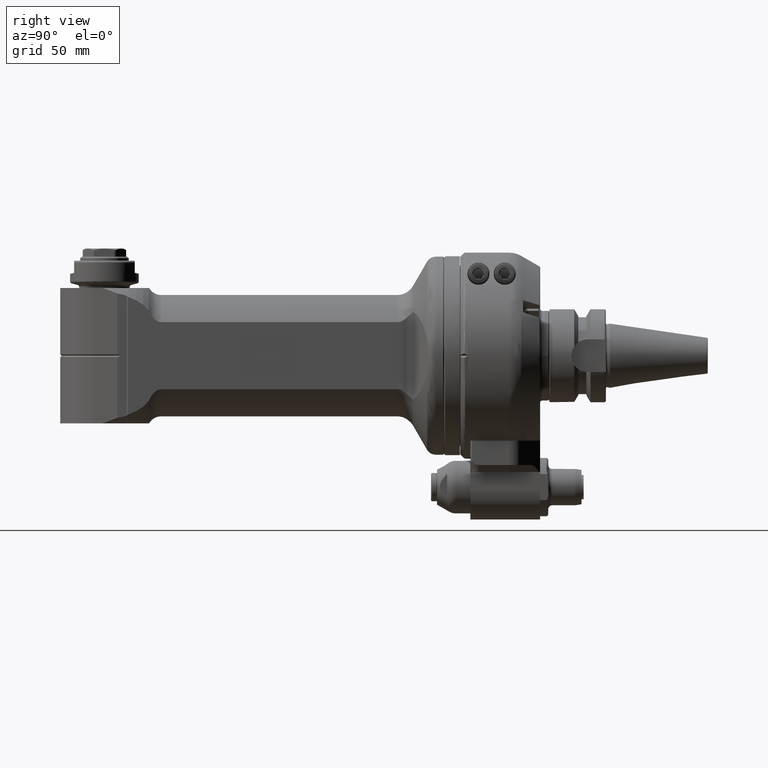
[diagram: clean part render]
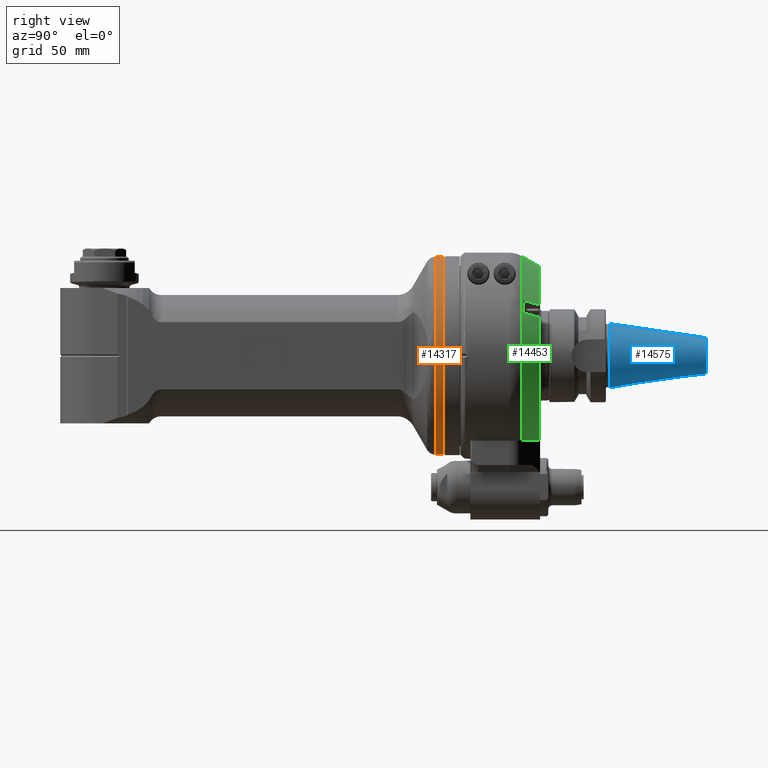
[diagram: same view with three faces highlighted in distinct colors, each labeled with its STEP entity id]
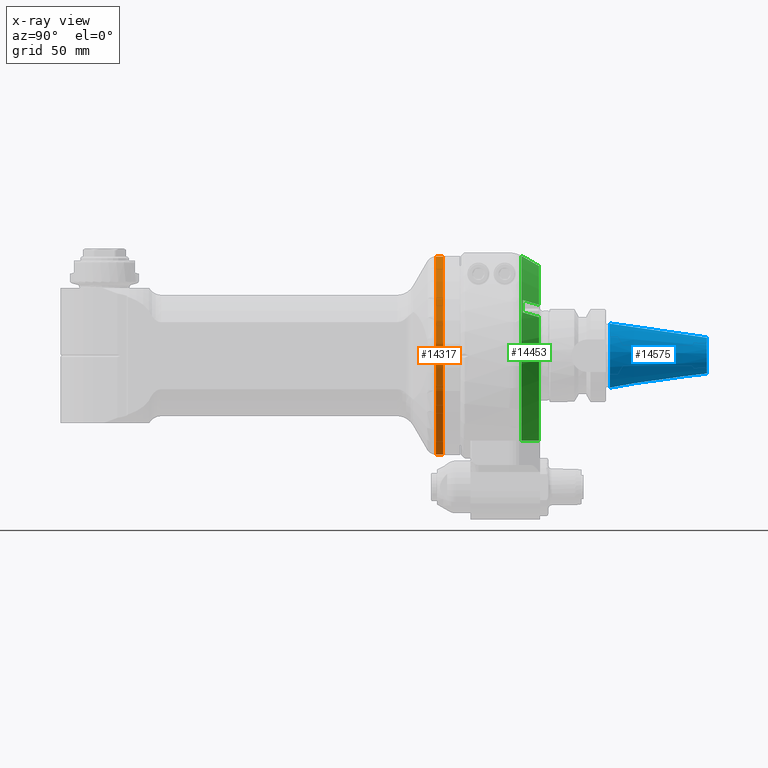
[diagram: x-ray of the same camera — body ghosted, the three highlighted faces saturated]
A machine part, right view with three faces highlighted in distinct colors.
The next image is the same camera in x-ray (body ghosted, the three faces saturated) — at least one of them is partly hidden behind the body in this view.
Their STEP definitions:

[orange] entity #14317 — the highlighted cylindrical surface (bore or boss wall) has radius 49 mm, axis along (-0, 1, 0).
#650=CYLINDRICAL_SURFACE('',#15384,49.);
#1166=CIRCLE('',#15382,49.);
#1168=CIRCLE('',#15385,49.);
#1169=CIRCLE('',#15386,49.);
#2021=FACE_OUTER_BOUND('',#2884,.T.);
#2884=EDGE_LOOP('',(#10178,#10179,#10180,#10181,#10182));
#3849=LINE('',#22196,#4905);
#4905=VECTOR('',#17442,49.);
#6076=VERTEX_POINT('',#22178);
#6077=VERTEX_POINT('',#22192);
#6078=VERTEX_POINT('',#22193);
#7706=EDGE_CURVE('',#6076,#6076,#1166,.T.);
#7709=EDGE_CURVE('',#6077,#6078,#1168,.T.);
#7710=EDGE_CURVE('',#6078,#6077,#1169,.T.);
#7711=EDGE_CURVE('',#6078,#6076,#3849,.T.);
#10178=ORIENTED_EDGE('',*,*,#7709,.F.);
#10179=ORIENTED_EDGE('',*,*,#7710,.F.);
#10180=ORIENTED_EDGE('',*,*,#7711,.T.);
#10181=ORIENTED_EDGE('',*,*,#7706,.F.);
#10182=ORIENTED_EDGE('',*,*,#7711,.F.);
#14317=ADVANCED_FACE('',(#2021),#650,.T.);
#15382=AXIS2_PLACEMENT_3D('',#22179,#17432,#17433);
#15384=AXIS2_PLACEMENT_3D('',#22191,#17436,#17437);
#15385=AXIS2_PLACEMENT_3D('',#22194,#17438,#17439);
#15386=AXIS2_PLACEMENT_3D('',#22195,#17440,#17441);
#17432=DIRECTION('center_axis',(1.,0.,0.));
#17433=DIRECTION('ref_axis',(0.,-1.,0.));
#17436=DIRECTION('center_axis',(-1.,0.,0.));
#17437=DIRECTION('ref_axis',(0.,1.,0.));
#17438=DIRECTION('center_axis',(-1.,0.,0.));
#17439=DIRECTION('ref_axis',(0.,1.,0.));
#17440=DIRECTION('center_axis',(-1.,0.,0.));
#17441=DIRECTION('ref_axis',(0.,1.,0.));
#17442=DIRECTION('',(1.,0.,0.));
#22178=CARTESIAN_POINT('',(16.11324869871,-49.,6.00076931582203E-15));
#22179=CARTESIAN_POINT('Origin',(16.11324869871,0.,0.));
#22191=CARTESIAN_POINT('Origin',(58.7038755,0.,0.));
#22192=CARTESIAN_POINT('',(12.5,49.,0.));
#22193=CARTESIAN_POINT('',(12.5,-49.,6.00076931582203E-15));
#22194=CARTESIAN_POINT('Origin',(12.5,0.,0.));
#22195=CARTESIAN_POINT('Origin',(12.5,0.,0.));
#22196=CARTESIAN_POINT('',(58.7038755,-49.,6.00076931582203E-15));

[blue] entity #14575 — the highlighted conical surface has half-angle 8.297 deg.
#521=CONICAL_SURFACE('',#15883,12.37703260579,0.144812411498922);
#1404=CIRCLE('',#15881,8.879065211573);
#1406=CIRCLE('',#15884,15.875);
#1407=CIRCLE('',#15885,15.875);
#2279=FACE_OUTER_BOUND('',#3208,.T.);
#3208=EDGE_LOOP('',(#11776,#11777,#11778,#11779,#11780));
#4336=LINE('',#24298,#5392);
#5392=VECTOR('',#18925,12.37703260579);
#6687=VERTEX_POINT('',#24291);
#6688=VERTEX_POINT('',#24295);
#6689=VERTEX_POINT('',#24296);
#8498=EDGE_CURVE('',#6687,#6687,#1404,.T.);
#8500=EDGE_CURVE('',#6688,#6689,#1406,.T.);
#8501=EDGE_CURVE('',#6688,#6687,#4336,.T.);
#8502=EDGE_CURVE('',#6689,#6688,#1407,.T.);
#11776=ORIENTED_EDGE('',*,*,#8500,.F.);
#11777=ORIENTED_EDGE('',*,*,#8501,.T.);
#11778=ORIENTED_EDGE('',*,*,#8498,.F.);
#11779=ORIENTED_EDGE('',*,*,#8501,.F.);
#11780=ORIENTED_EDGE('',*,*,#8502,.F.);
#14575=ADVANCED_FACE('',(#2279),#521,.T.);
#15881=AXIS2_PLACEMENT_3D('',#24292,#18917,#18918);
#15883=AXIS2_PLACEMENT_3D('',#24294,#18921,#18922);
#15884=AXIS2_PLACEMENT_3D('',#24297,#18923,#18924);
#15885=AXIS2_PLACEMENT_3D('',#24299,#18926,#18927);
#18917=DIRECTION('center_axis',(0.,1.,0.));
#18918=DIRECTION('ref_axis',(0.,0.,-1.));
#18921=DIRECTION('center_axis',(0.,-1.,0.));
#18922=DIRECTION('ref_axis',(0.,0.,-1.));
#18923=DIRECTION('center_axis',(0.,-1.,0.));
#18924=DIRECTION('ref_axis',(0.,0.,1.));
#18925=DIRECTION('',(1.76724869581176E-17,0.98953299358046,-0.144306807239621));
#18926=DIRECTION('center_axis',(0.,-1.,0.));
#18927=DIRECTION('ref_axis',(0.,0.,1.));
#24291=CARTESIAN_POINT('',(-1.08737187907735E-15,121.97215340362,8.879065211573));
#24292=CARTESIAN_POINT('Origin',(0.,121.97215340362,0.));
#24294=CARTESIAN_POINT('Origin',(0.,97.98607670181,0.));
#24295=CARTESIAN_POINT('',(0.,74.,15.875));
#24296=CARTESIAN_POINT('',(-1.94412679364602E-15,74.0000000000009,-15.8749999999967));
#24297=CARTESIAN_POINT('Origin',(0.,74.,0.));
#24298=CARTESIAN_POINT('',(-1.51574933636231E-15,97.98607670181,12.37703260579));
#24299=CARTESIAN_POINT('Origin',(0.,74.,0.));

[green] entity #14453 — the highlighted conical surface has half-angle 30 deg.
#127=B_SPLINE_CURVE_WITH_KNOTS('',3,(#23332,#23333,#23334,#23335,#23336,
#23337,#23338,#23339,#23340,#23341),.UNSPECIFIED.,.F.,.F.,(4,3,3,4),(1.4337342611041E-5,
0.3333333333333,0.6666666666667,1.),.UNSPECIFIED.);
#130=B_SPLINE_CURVE_WITH_KNOTS('',3,(#23387,#23388,#23389,#23390,#23391,
#23392,#23393,#23394,#23395,#23396),.UNSPECIFIED.,.F.,.F.,(4,3,3,4),(0.,
0.3333333333333,0.6666666666667,0.999986602366628),.UNSPECIFIED.);
#134=B_SPLINE_CURVE_WITH_KNOTS('',3,(#23446,#23447,#23448,#23449,#23450,
#23451,#23452,#23453,#23454,#23455),.UNSPECIFIED.,.F.,.F.,(4,3,3,4),(2.38328188097675E-6,
0.3333333333333,0.6666666666667,1.),.UNSPECIFIED.);
#327=(
BOUNDED_CURVE()
B_SPLINE_CURVE(2,(#23214,#23215,#23216),.UNSPECIFIED.,.F.,.F.)
B_SPLINE_CURVE_WITH_KNOTS((3,3),(-4.80707705791519,-2.95268713046296),
 .UNSPECIFIED.)
CURVE()
GEOMETRIC_REPRESENTATION_ITEM()
RATIONAL_B_SPLINE_CURVE((1.01149371983583,1.03091361245284,1.03364016221379))
REPRESENTATION_ITEM('')
);
#490=CONICAL_SURFACE('',#15636,46.84048999,0.523598775598299);
#1271=CIRCLE('',#15619,48.90747728811);
#1282=CIRCLE('',#15635,44.28867513459);
#1283=CIRCLE('',#15637,49.39230484541);
#1284=CIRCLE('',#15638,44.28867513459);
#2157=FACE_OUTER_BOUND('',#3064,.T.);
#3064=EDGE_LOOP('',(#11189,#11190,#11191,#11192,#11193,#11194,#11195,#11196));
#6454=VERTEX_POINT('',#23204);
#6455=VERTEX_POINT('',#23213);
#6480=VERTEX_POINT('',#23328);
#6482=VERTEX_POINT('',#23331);
#6484=VERTEX_POINT('',#23353);
#6495=VERTEX_POINT('',#23378);
#6500=VERTEX_POINT('',#23432);
#6501=VERTEX_POINT('',#23443);
#8157=EDGE_CURVE('',#6454,#6455,#327,.T.);
#8189=EDGE_CURVE('',#6482,#6480,#127,.T.);
#8193=EDGE_CURVE('',#6484,#6480,#1271,.T.);
#8206=EDGE_CURVE('',#6484,#6495,#130,.T.);
#8215=EDGE_CURVE('',#6500,#6495,#1282,.T.);
#8216=EDGE_CURVE('',#6455,#6501,#1283,.T.);
#8217=EDGE_CURVE('',#6482,#6454,#1284,.T.);
#8218=EDGE_CURVE('',#6500,#6501,#134,.T.);
#11189=ORIENTED_EDGE('',*,*,#8216,.F.);
#11190=ORIENTED_EDGE('',*,*,#8157,.F.);
#11191=ORIENTED_EDGE('',*,*,#8217,.F.);
#11192=ORIENTED_EDGE('',*,*,#8189,.T.);
#11193=ORIENTED_EDGE('',*,*,#8193,.F.);
#11194=ORIENTED_EDGE('',*,*,#8206,.T.);
#11195=ORIENTED_EDGE('',*,*,#8215,.F.);
#11196=ORIENTED_EDGE('',*,*,#8218,.T.);
#14453=ADVANCED_FACE('',(#2157),#490,.T.);
#15619=AXIS2_PLACEMENT_3D('',#23355,#18266,#18267);
#15635=AXIS2_PLACEMENT_3D('',#23441,#18304,#18305);
#15636=AXIS2_PLACEMENT_3D('',#23442,#18306,#18307);
#15637=AXIS2_PLACEMENT_3D('',#23444,#18308,#18309);
#15638=AXIS2_PLACEMENT_3D('',#23445,#18310,#18311);
#18266=DIRECTION('center_axis',(0.,1.,0.));
#18267=DIRECTION('ref_axis',(0.828023092261376,0.,0.560693997365684));
#18304=DIRECTION('center_axis',(0.,1.,0.));
#18305=DIRECTION('ref_axis',(0.0338687033523017,0.,0.999426290895549));
#18306=DIRECTION('center_axis',(0.,-1.,0.));
#18307=DIRECTION('ref_axis',(0.,0.,1.));
#18308=DIRECTION('center_axis',(0.,-1.,0.));
#18309=DIRECTION('ref_axis',(0.526241939180605,0.,-0.850334887822108));
#18310=DIRECTION('center_axis',(0.,1.,0.));
#18311=DIRECTION('ref_axis',(0.902830377486504,0.,0.429996871485802));
#23204=CARTESIAN_POINT('',(14.05299772923,39.,-42.));
#23213=CARTESIAN_POINT('',(25.99230228245,30.16025403784,-42.));
#23214=CARTESIAN_POINT('Ctrl Pts',(14.0529977292256,38.9999999999919,-42.));
#23215=CARTESIAN_POINT('Ctrl Pts',(19.6974303643609,35.897889892267,-42.));
#23216=CARTESIAN_POINT('Ctrl Pts',(25.992302282447,30.1602540378376,-42.));
#23328=CARTESIAN_POINT('',(43.9965205788,31.,21.35995111525));
#23331=CARTESIAN_POINT('',(39.9851613015337,39.000000054817,19.0439917563676));
#23332=CARTESIAN_POINT('Ctrl Pts',(39.9851613594535,39.0000000936506,19.0439917901449));
#23333=CARTESIAN_POINT('Ctrl Pts',(40.4310549896751,38.111001909048,19.3014285975833));
#23334=CARTESIAN_POINT('Ctrl Pts',(40.8767971131938,37.2222071099017,19.5587779325861));
#23335=CARTESIAN_POINT('Ctrl Pts',(41.3225132481472,36.3333776153427,19.8161122630835));
#23336=CARTESIAN_POINT('Ctrl Pts',(41.7682485550801,35.4445098887801,20.0734576625286));
#23337=CARTESIAN_POINT('Ctrl Pts',(42.2139578712119,34.5556074638199,20.3307880561776));
#23338=CARTESIAN_POINT('Ctrl Pts',(42.6596268471992,33.6667068043048,20.5880951594333));
#23339=CARTESIAN_POINT('Ctrl Pts',(43.1052958231864,32.7778061447899,20.845402262689));
#23340=CARTESIAN_POINT('Ctrl Pts',(43.5509244590291,31.88890725072,21.1026860755515));
#23341=CARTESIAN_POINT('Ctrl Pts',(43.9965205787995,31.,21.3599511152508));
#23353=CARTESIAN_POINT('',(40.4965205788,31.,27.42212894174));
#23355=CARTESIAN_POINT('Origin',(0.,31.,0.));
#23378=CARTESIAN_POINT('',(36.485161300515,39.0000000512241,25.1061695829229));
#23387=CARTESIAN_POINT('Ctrl Pts',(40.4965205787991,31.,27.4221289417415));
#23388=CARTESIAN_POINT('Ctrl Pts',(40.0509244590287,31.88890725073,27.1648639020422));
#23389=CARTESIAN_POINT('Ctrl Pts',(39.6052956968493,32.7778063956649,26.9075800162392));
#23390=CARTESIAN_POINT('Ctrl Pts',(39.1596268471929,33.6667068043206,26.6502729859206));
#23391=CARTESIAN_POINT('Ctrl Pts',(38.7139579975363,34.5556072129766,26.392965955602));
#23392=CARTESIAN_POINT('Ctrl Pts',(38.2682490604027,35.4445088853534,26.1356357807677));
#23393=CARTESIAN_POINT('Ctrl Pts',(37.8225132481428,36.3333776153569,25.8782900895719));
#23394=CARTESIAN_POINT('Ctrl Pts',(37.376795351298,37.2222106191481,25.6209547418459));
#23395=CARTESIAN_POINT('Ctrl Pts',(36.9310505814872,38.1110106832139,25.3636038790058));
#23396=CARTESIAN_POINT('Ctrl Pts',(36.4851613549132,39.0000000875135,25.1061696140145));
#23432=CARTESIAN_POINT('',(1.50000000010533,39.0000000070242,44.2632663158903));
#23441=CARTESIAN_POINT('Origin',(0.,39.,0.));
#23442=CARTESIAN_POINT('Origin',(0.,34.58012701892,0.));
#23443=CARTESIAN_POINT('',(1.50000009631114,30.160265019228,49.3695164173488));
#23444=CARTESIAN_POINT('Origin',(0.,30.16025403784,0.));
#23445=CARTESIAN_POINT('Origin',(0.,39.,0.));
#23446=CARTESIAN_POINT('Ctrl Pts',(1.5,39.0000000083323,44.2632663181547));
#23447=CARTESIAN_POINT('Ctrl Pts',(1.5,38.0177868668529,44.830672865918));
#23448=CARTESIAN_POINT('Ctrl Pts',(1.5,37.0356099513042,45.3980459506009));
#23449=CARTESIAN_POINT('Ctrl Pts',(1.5,36.0534278016161,45.9654109220482));
#23450=CARTESIAN_POINT('Ctrl Pts',(1.5,35.0712386294268,46.5327799500966));
#23451=CARTESIAN_POINT('Ctrl Pts',(1.5,34.0890442230232,47.1001408647934));
#23452=CARTESIAN_POINT('Ctrl Pts',(1.5,33.1068448132439,47.6674946727968));
#23453=CARTESIAN_POINT('Ctrl Pts',(1.5,32.1246454034648,48.2348484808001));
#23454=CARTESIAN_POINT('Ctrl Pts',(1.5,31.14244099031,48.80219518211));
#23455=CARTESIAN_POINT('Ctrl Pts',(1.5,30.16027599869,49.36951007704));